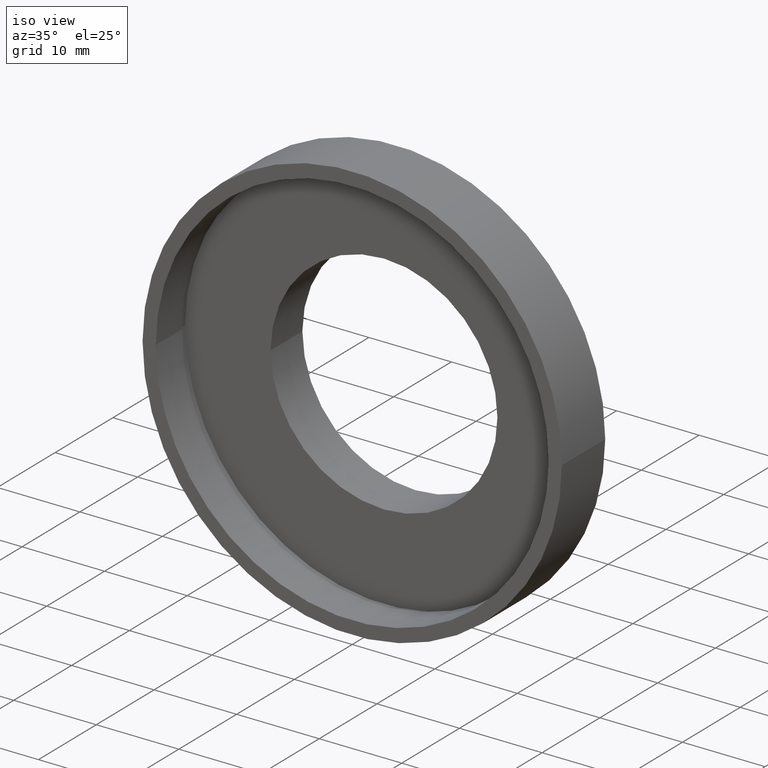
[diagram: clean part render]
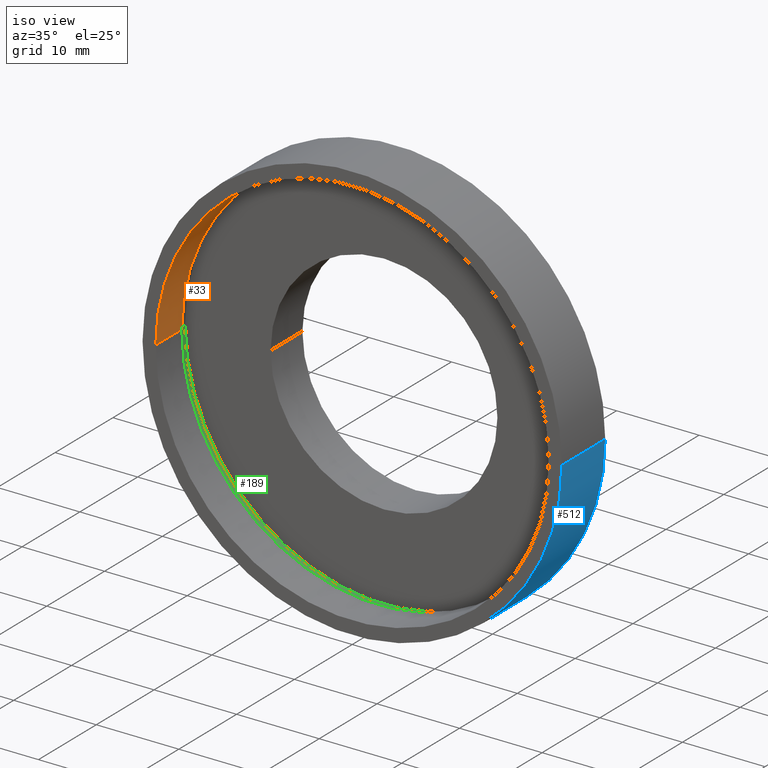
[diagram: same view with three faces highlighted in distinct colors, each labeled with its STEP entity id]
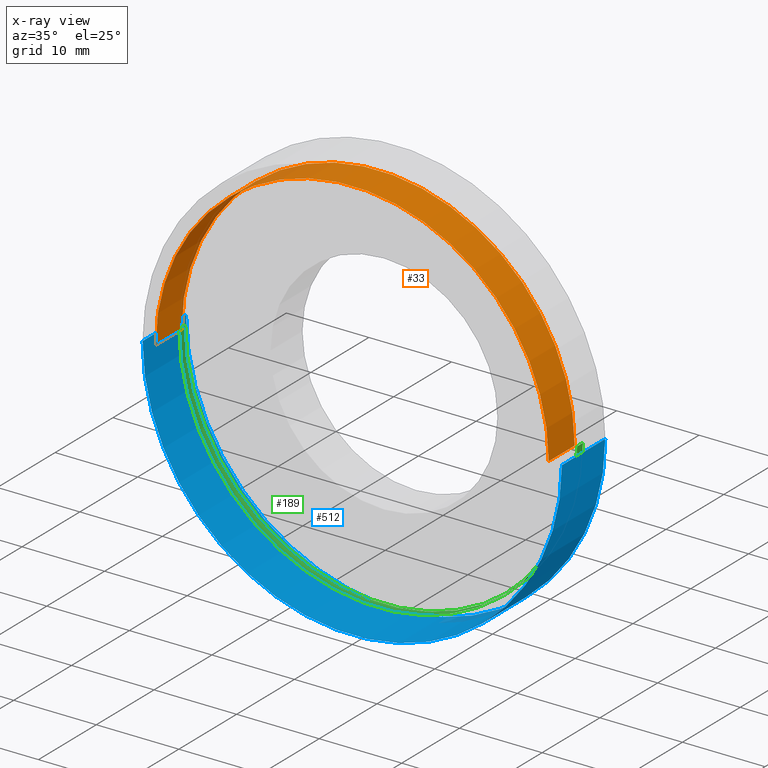
[diagram: x-ray of the same camera — body ghosted, the three highlighted faces saturated]
A machine part, iso view with three faces highlighted in distinct colors.
The next image is the same camera in x-ray (body ghosted, the three faces saturated) — at least one of them is partly hidden behind the body in this view.
Their STEP definitions:

[orange] entity #33 — the highlighted cylindrical surface (partial cylindrical patch) has radius 23.8 mm, axis along (-0, 1, -0).
#3 = EDGE_CURVE ( 'NONE', #516, #128, #464, .T. ) ;
#33 = ADVANCED_FACE ( 'NONE', ( #431 ), #314, .F. ) ;
#36 = CIRCLE ( 'NONE', #84, 23.80000000000000400 ) ;
#40 = VECTOR ( 'NONE', #396, 1000.000000000000000 ) ;
#43 = EDGE_CURVE ( 'NONE', #128, #411, #36, .T. ) ;
#84 = AXIS2_PLACEMENT_3D ( 'NONE', #227, #417, #458 ) ;
#94 = EDGE_LOOP ( 'NONE', ( #446, #474, #472, #526 ) ) ;
#96 = DIRECTION ( 'NONE',  ( -1.000000000000000000, -1.224646799147351000E-016, 0.0000000000000000000 ) ) ;
#113 = CARTESIAN_POINT ( 'NONE',  ( -23.79999999999999700, -6.384106333924309500E-015, 0.0000000000000000000 ) ) ;
#125 = DIRECTION ( 'NONE',  ( -1.000000000000000000, -1.457750820148577400E-016, 0.0000000000000000000 ) ) ;
#128 = VERTEX_POINT ( 'NONE', #179 ) ;
#179 = CARTESIAN_POINT ( 'NONE',  ( -23.80000000000000400, 4.499999999999994700, 0.0000000000000000000 ) ) ;
#215 = CARTESIAN_POINT ( 'NONE',  ( 23.80000000000000100, 16.88601823708208000, 2.914659381970700800E-015 ) ) ;
#227 = CARTESIAN_POINT ( 'NONE',  ( 1.516849758822328300E-015, 4.499999999999997300, 0.0000000000000000000 ) ) ;
#240 = VECTOR ( 'NONE', #398, 1000.000000000000000 ) ;
#246 = EDGE_CURVE ( 'NONE', #516, #480, #570, .T. ) ;
#253 = DIRECTION ( 'NONE',  ( -1.224646799147351000E-016, 1.000000000000000000, -0.0000000000000000000 ) ) ;
#273 = EDGE_CURVE ( 'NONE', #480, #411, #364, .T. ) ;
#291 = CARTESIAN_POINT ( 'NONE',  ( 0.0000000000000000000, 16.88601823708207700, 0.0000000000000000000 ) ) ;
#314 = CYLINDRICAL_SURFACE ( 'NONE', #484, 23.80000000000000100 ) ;
#364 = LINE ( 'NONE', #215, #240 ) ;
#396 = DIRECTION ( 'NONE',  ( -1.224646799147351000E-016, 1.000000000000000000, -0.0000000000000000000 ) ) ;
#398 = DIRECTION ( 'NONE',  ( -1.224646799147351000E-016, 1.000000000000000000, -0.0000000000000000000 ) ) ;
#408 = AXIS2_PLACEMENT_3D ( 'NONE', #535, #576, #96 ) ;
#411 = VERTEX_POINT ( 'NONE', #608 ) ;
#417 = DIRECTION ( 'NONE',  ( -1.224646799147351000E-016, 1.000000000000000000, -0.0000000000000000000 ) ) ;
#431 = FACE_OUTER_BOUND ( 'NONE', #94, .T. ) ;
#446 = ORIENTED_EDGE ( 'NONE', *, *, #273, .F. ) ;
#455 = CARTESIAN_POINT ( 'NONE',  ( 23.80000000000000800, -5.547875699829184300E-016, 2.914659381970701600E-015 ) ) ;
#458 = DIRECTION ( 'NONE',  ( -1.000000000000000000, -1.093313115111432900E-016, 0.0000000000000000000 ) ) ;
#464 = LINE ( 'NONE', #483, #40 ) ;
#472 = ORIENTED_EDGE ( 'NONE', *, *, #3, .T. ) ;
#474 = ORIENTED_EDGE ( 'NONE', *, *, #246, .F. ) ;
#480 = VERTEX_POINT ( 'NONE', #455 ) ;
#483 = CARTESIAN_POINT ( 'NONE',  ( -23.80000000000000100, 16.88601823708207300, 0.0000000000000000000 ) ) ;
#484 = AXIS2_PLACEMENT_3D ( 'NONE', #291, #253, #125 ) ;
#516 = VERTEX_POINT ( 'NONE', #113 ) ;
#526 = ORIENTED_EDGE ( 'NONE', *, *, #43, .T. ) ;
#535 = CARTESIAN_POINT ( 'NONE',  ( 2.067940818438636500E-015, -3.469446951953614200E-015, 0.0000000000000000000 ) ) ;
#570 = CIRCLE ( 'NONE', #408, 23.80000000000000100 ) ;
#576 = DIRECTION ( 'NONE',  ( -1.224646799147351000E-016, 1.000000000000000000, -0.0000000000000000000 ) ) ;
#608 = CARTESIAN_POINT ( 'NONE',  ( 23.80000000000000800, 4.500000000000000000, 2.914659381970701600E-015 ) ) ;

[blue] entity #512 — the highlighted cylindrical surface (partial cylindrical patch) has radius 25.4 mm, axis along (-0, 1, -0).
#4 = CARTESIAN_POINT ( 'NONE',  ( -25.39999999999999100, -6.580049821787884700E-015, 0.0000000000000000000 ) ) ;
#5 = VERTEX_POINT ( 'NONE', #575 ) ;
#14 = DIRECTION ( 'NONE',  ( -1.224646799147351000E-016, 1.000000000000000000, -0.0000000000000000000 ) ) ;
#39 = VERTEX_POINT ( 'NONE', #459 ) ;
#70 = CARTESIAN_POINT ( 'NONE',  ( 25.39999999999999900, 16.88601823708208000, 3.110602869834276900E-015 ) ) ;
#86 = ORIENTED_EDGE ( 'NONE', *, *, #279, .T. ) ;
#93 = CIRCLE ( 'NONE', #577, 25.39999999999999500 ) ;
#98 = AXIS2_PLACEMENT_3D ( 'NONE', #213, #588, #307 ) ;
#120 = LINE ( 'NONE', #70, #614 ) ;
#144 = DIRECTION ( 'NONE',  ( -1.000000000000000000, -1.224646799147351000E-016, 0.0000000000000000000 ) ) ;
#148 = EDGE_CURVE ( 'NONE', #39, #274, #93, .T. ) ;
#162 = CARTESIAN_POINT ( 'NONE',  ( 25.39999999999999900, 7.500000000000000000, 3.110602869834276900E-015 ) ) ;
#180 = VECTOR ( 'NONE', #585, 1000.000000000000000 ) ;
#195 = ORIENTED_EDGE ( 'NONE', *, *, #499, .F. ) ;
#213 = CARTESIAN_POINT ( 'NONE',  ( 1.149455719078123100E-015, 7.499999999999996400, 0.0000000000000000000 ) ) ;
#271 = CYLINDRICAL_SURFACE ( 'NONE', #572, 25.39999999999999900 ) ;
#274 = VERTEX_POINT ( 'NONE', #4 ) ;
#279 = EDGE_CURVE ( 'NONE', #274, #5, #592, .T. ) ;
#307 = DIRECTION ( 'NONE',  ( -1.000000000000000000, -1.365923996832131600E-016, 0.0000000000000000000 ) ) ;
#310 = CARTESIAN_POINT ( 'NONE',  ( 0.0000000000000000000, 16.88601823708207700, 0.0000000000000000000 ) ) ;
#366 = DIRECTION ( 'NONE',  ( -1.000000000000000000, -1.365923996832131600E-016, 0.0000000000000000000 ) ) ;
#410 = DIRECTION ( 'NONE',  ( -1.224646799147351000E-016, 1.000000000000000000, -0.0000000000000000000 ) ) ;
#440 = CIRCLE ( 'NONE', #98, 25.39999999999999900 ) ;
#459 = CARTESIAN_POINT ( 'NONE',  ( 25.39999999999999900, -3.588440821193433400E-016, 3.110602869834276900E-015 ) ) ;
#463 = ORIENTED_EDGE ( 'NONE', *, *, #148, .T. ) ;
#475 = CARTESIAN_POINT ( 'NONE',  ( 2.067940818438636500E-015, -3.469446951953614200E-015, 0.0000000000000000000 ) ) ;
#486 = FACE_OUTER_BOUND ( 'NONE', #507, .T. ) ;
#491 = VERTEX_POINT ( 'NONE', #162 ) ;
#499 = EDGE_CURVE ( 'NONE', #39, #491, #120, .T. ) ;
#507 = EDGE_LOOP ( 'NONE', ( #195, #463, #86, #619 ) ) ;
#512 = ADVANCED_FACE ( 'NONE', ( #486 ), #271, .T. ) ;
#515 = DIRECTION ( 'NONE',  ( -1.224646799147351000E-016, 1.000000000000000000, -0.0000000000000000000 ) ) ;
#572 = AXIS2_PLACEMENT_3D ( 'NONE', #310, #410, #366 ) ;
#575 = CARTESIAN_POINT ( 'NONE',  ( -25.39999999999999900, 7.499999999999992900, 0.0000000000000000000 ) ) ;
#577 = AXIS2_PLACEMENT_3D ( 'NONE', #475, #515, #144 ) ;
#583 = CARTESIAN_POINT ( 'NONE',  ( -25.39999999999999900, 16.88601823708207300, 0.0000000000000000000 ) ) ;
#585 = DIRECTION ( 'NONE',  ( -1.224646799147351000E-016, 1.000000000000000000, -0.0000000000000000000 ) ) ;
#588 = DIRECTION ( 'NONE',  ( -1.224646799147351000E-016, 1.000000000000000000, -0.0000000000000000000 ) ) ;
#592 = LINE ( 'NONE', #583, #180 ) ;
#601 = EDGE_CURVE ( 'NONE', #491, #5, #440, .T. ) ;
#614 = VECTOR ( 'NONE', #14, 1000.000000000000000 ) ;
#619 = ORIENTED_EDGE ( 'NONE', *, *, #601, .F. ) ;

[green] entity #189 — the highlighted cylindrical surface (partial cylindrical patch) has radius 24.1 mm, axis along (-0, 1, -0).
#27 = DIRECTION ( 'NONE',  ( -1.000000000000000000, -1.079703408284319800E-016, 0.0000000000000000000 ) ) ;
#37 = VERTEX_POINT ( 'NONE', #555 ) ;
#38 = CARTESIAN_POINT ( 'NONE',  ( 1.394385078907593200E-015, 5.499999999999996400, 0.0000000000000000000 ) ) ;
#47 = VECTOR ( 'NONE', #547, 1000.000000000000000 ) ;
#62 = VERTEX_POINT ( 'NONE', #272 ) ;
#64 = FACE_OUTER_BOUND ( 'NONE', #214, .T. ) ;
#91 = DIRECTION ( 'NONE',  ( -1.224646799147351000E-016, 1.000000000000000000, -0.0000000000000000000 ) ) ;
#116 = LINE ( 'NONE', #597, #612 ) ;
#130 = CARTESIAN_POINT ( 'NONE',  ( 24.10000000000000100, 5.499999999999999100, 2.951398785945121300E-015 ) ) ;
#133 = EDGE_CURVE ( 'NONE', #37, #541, #442, .T. ) ;
#140 = VERTEX_POINT ( 'NONE', #130 ) ;
#146 = AXIS2_PLACEMENT_3D ( 'NONE', #208, #91, #404 ) ;
#157 = ORIENTED_EDGE ( 'NONE', *, *, #351, .F. ) ;
#159 = CARTESIAN_POINT ( 'NONE',  ( -24.10000000000000100, 4.499999999999994700, 0.0000000000000000000 ) ) ;
#167 = EDGE_CURVE ( 'NONE', #140, #62, #332, .T. ) ;
#189 = ADVANCED_FACE ( 'NONE', ( #64 ), #479, .F. ) ;
#208 = CARTESIAN_POINT ( 'NONE',  ( 0.0000000000000000000, 16.88601823708207700, 0.0000000000000000000 ) ) ;
#214 = EDGE_LOOP ( 'NONE', ( #525, #276, #439, #157 ) ) ;
#272 = CARTESIAN_POINT ( 'NONE',  ( -24.10000000000000100, 5.499999999999993800, 0.0000000000000000000 ) ) ;
#276 = ORIENTED_EDGE ( 'NONE', *, *, #376, .T. ) ;
#285 = AXIS2_PLACEMENT_3D ( 'NONE', #38, #430, #603 ) ;
#295 = LINE ( 'NONE', #497, #47 ) ;
#330 = DIRECTION ( 'NONE',  ( -1.224646799147351000E-016, 1.000000000000000000, -0.0000000000000000000 ) ) ;
#332 = CIRCLE ( 'NONE', #285, 24.10000000000000100 ) ;
#351 = EDGE_CURVE ( 'NONE', #541, #62, #116, .T. ) ;
#376 = EDGE_CURVE ( 'NONE', #37, #140, #295, .T. ) ;
#392 = AXIS2_PLACEMENT_3D ( 'NONE', #605, #330, #27 ) ;
#404 = DIRECTION ( 'NONE',  ( -1.000000000000000000, -1.439604544379092800E-016, 0.0000000000000000000 ) ) ;
#414 = DIRECTION ( 'NONE',  ( -1.224646799147351000E-016, 1.000000000000000000, -0.0000000000000000000 ) ) ;
#430 = DIRECTION ( 'NONE',  ( -1.224646799147351000E-016, 1.000000000000000000, -0.0000000000000000000 ) ) ;
#439 = ORIENTED_EDGE ( 'NONE', *, *, #167, .T. ) ;
#442 = CIRCLE ( 'NONE', #392, 24.10000000000000100 ) ;
#479 = CYLINDRICAL_SURFACE ( 'NONE', #146, 24.10000000000000100 ) ;
#497 = CARTESIAN_POINT ( 'NONE',  ( 24.10000000000000100, 16.88601823708208000, 2.951398785945121300E-015 ) ) ;
#525 = ORIENTED_EDGE ( 'NONE', *, *, #133, .F. ) ;
#541 = VERTEX_POINT ( 'NONE', #159 ) ;
#547 = DIRECTION ( 'NONE',  ( -1.224646799147351000E-016, 1.000000000000000000, -0.0000000000000000000 ) ) ;
#555 = CARTESIAN_POINT ( 'NONE',  ( 24.10000000000000100, 4.500000000000000000, 2.951398785945121300E-015 ) ) ;
#597 = CARTESIAN_POINT ( 'NONE',  ( -24.10000000000000100, 16.88601823708207300, 0.0000000000000000000 ) ) ;
#603 = DIRECTION ( 'NONE',  ( -1.000000000000000000, -1.079703408284319800E-016, 0.0000000000000000000 ) ) ;
#605 = CARTESIAN_POINT ( 'NONE',  ( 1.516849758822328300E-015, 4.499999999999997300, 0.0000000000000000000 ) ) ;
#612 = VECTOR ( 'NONE', #414, 1000.000000000000000 ) ;